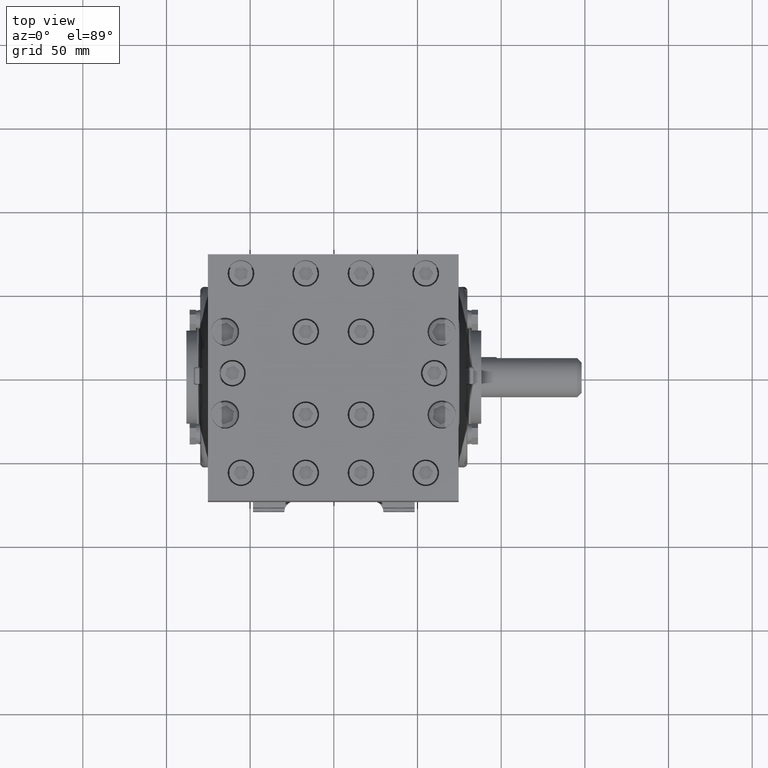
[diagram: clean part render]
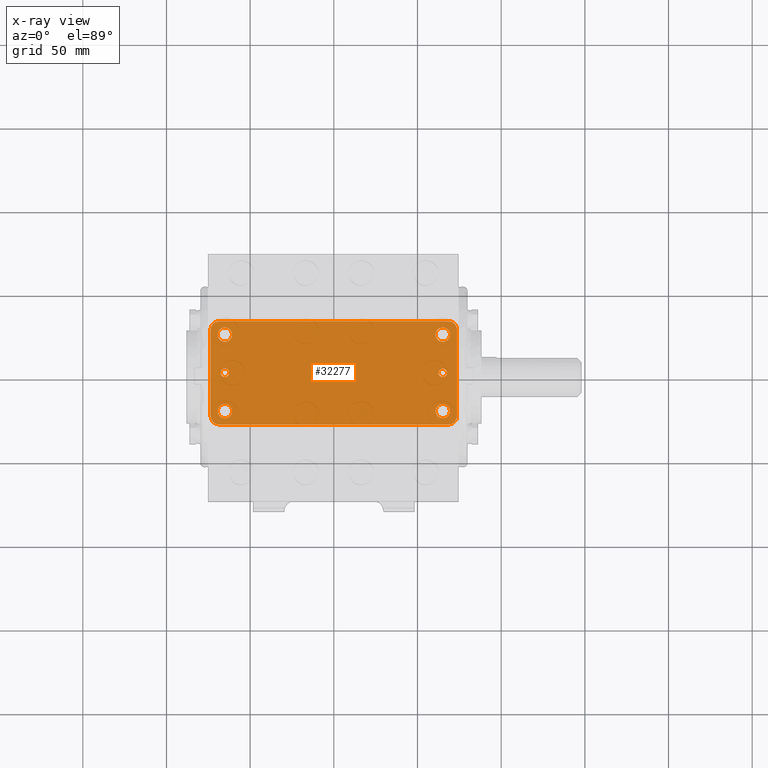
[diagram: x-ray — body ghosted, one internal face saturated and labeled with its STEP entity id]
A machine part, top view, then the same camera in x-ray: the body is ghosted and one INTERNAL B-rep face — a face not visible from any outside direction — is saturated and labeled: STEP entity #32277.
In plain terms, the highlighted planar face has unit normal (0, -0, -1).
Its self-contained STEP definition (entity closure, byte-faithful):
#13656 = CARTESIAN_POINT ( 'NONE',  ( -2.562500000000000000, 0.7326771653543310300, 5.655000000000001100 ) ) ;
#13681 = DIRECTION ( 'NONE',  ( 0.0000000000000000000, -1.000000000000000000, 0.0000000000000000000 ) ) ;
#13682 = DIRECTION ( 'NONE',  ( -0.0000000000000000000, 4.370956789862821100E-016, 1.000000000000000000 ) ) ;
#13684 = AXIS2_PLACEMENT_3D ( 'NONE', #13695, #13682, #13681 ) ;
#13685 = CIRCLE ( 'NONE', #13684, 0.1673228346456689100 ) ;
#13695 = CARTESIAN_POINT ( 'NONE',  ( -2.562500000000000000, 0.8999999999999999100, 5.655000000000001100 ) ) ;
#13787 = CARTESIAN_POINT ( 'NONE',  ( -2.562500000000000000, 1.067322834645668900, 5.655000000000001100 ) ) ;
#13959 = CARTESIAN_POINT ( 'NONE',  ( -2.562500000000000000, -0.7326771653543310300, 5.655000000000001100 ) ) ;
#14186 = DIRECTION ( 'NONE',  ( 0.0000000000000000000, -1.000000000000000000, 0.0000000000000000000 ) ) ;
#14188 = DIRECTION ( 'NONE',  ( -0.0000000000000000000, 4.370956789862821100E-016, 1.000000000000000000 ) ) ;
#14189 = CARTESIAN_POINT ( 'NONE',  ( 2.562500000000000000, 0.8999999999999999100, 5.655000000000001100 ) ) ;
#14190 = AXIS2_PLACEMENT_3D ( 'NONE', #14189, #14188, #14186 ) ;
#14192 = CIRCLE ( 'NONE', #14190, 0.1673228346456689100 ) ;
#14250 = CARTESIAN_POINT ( 'NONE',  ( 2.562500000000000000, 1.067322834645668900, 5.655000000000001100 ) ) ;
#14282 = CARTESIAN_POINT ( 'NONE',  ( 2.562500000000000000, 0.7326771653543310300, 5.655000000000001100 ) ) ;
#14348 = CARTESIAN_POINT ( 'NONE',  ( -2.562500000000000000, -1.067322834645668900, 5.655000000000001100 ) ) ;
#14349 = DIRECTION ( 'NONE',  ( 0.0000000000000000000, -1.000000000000000000, 0.0000000000000000000 ) ) ;
#14351 = DIRECTION ( 'NONE',  ( -0.0000000000000000000, 4.370956789862821100E-016, 1.000000000000000000 ) ) ;
#14353 = CARTESIAN_POINT ( 'NONE',  ( -2.562500000000000000, -0.8999999999999999100, 5.655000000000001100 ) ) ;
#14354 = AXIS2_PLACEMENT_3D ( 'NONE', #14353, #14351, #14349 ) ;
#14357 = CIRCLE ( 'NONE', #14354, 0.1673228346456689100 ) ;
#14455 = CARTESIAN_POINT ( 'NONE',  ( 2.562500000000000000, -0.7326771653543310300, 5.655000000000001100 ) ) ;
#14607 = CARTESIAN_POINT ( 'NONE',  ( 2.562500000000000000, -1.067322834645668900, 5.655000000000001100 ) ) ;
#14610 = DIRECTION ( 'NONE',  ( 0.0000000000000000000, -1.000000000000000000, 0.0000000000000000000 ) ) ;
#14611 = DIRECTION ( 'NONE',  ( -0.0000000000000000000, 4.370956789862821100E-016, 1.000000000000000000 ) ) ;
#14612 = CARTESIAN_POINT ( 'NONE',  ( 2.562500000000000000, -0.8999999999999999100, 5.655000000000001100 ) ) ;
#14613 = AXIS2_PLACEMENT_3D ( 'NONE', #14612, #14611, #14610 ) ;
#14614 = CIRCLE ( 'NONE', #14613, 0.1673228346456689100 ) ;
#16316 = CARTESIAN_POINT ( 'NONE',  ( -2.662499999999999600, 7.867722221753134100E-017, 5.655000000000001100 ) ) ;
#16319 = DIRECTION ( 'NONE',  ( 0.0000000000000000000, 1.000000000000000000, 0.0000000000000000000 ) ) ;
#16321 = DIRECTION ( 'NONE',  ( -0.0000000000000000000, 4.370956789862821100E-016, 1.000000000000000000 ) ) ;
#16322 = CARTESIAN_POINT ( 'NONE',  ( -2.562500000000000000, 7.867722221753134100E-017, 5.655000000000001100 ) ) ;
#16324 = AXIS2_PLACEMENT_3D ( 'NONE', #16322, #16321, #16319 ) ;
#16326 = CIRCLE ( 'NONE', #16324, 0.09999999999999983900 ) ;
#16673 = CARTESIAN_POINT ( 'NONE',  ( 2.462499999999999900, 7.867722221753134100E-017, 5.655000000000001100 ) ) ;
#16674 = DIRECTION ( 'NONE',  ( 0.0000000000000000000, 1.000000000000000000, 0.0000000000000000000 ) ) ;
#16675 = DIRECTION ( 'NONE',  ( -0.0000000000000000000, 4.370956789862821100E-016, 1.000000000000000000 ) ) ;
#16677 = CARTESIAN_POINT ( 'NONE',  ( 2.562500000000000000, 7.867722221753134100E-017, 5.655000000000001100 ) ) ;
#16678 = AXIS2_PLACEMENT_3D ( 'NONE', #16677, #16675, #16674 ) ;
#16679 = CIRCLE ( 'NONE', #16678, 0.09999999999999983900 ) ;
#16872 = CARTESIAN_POINT ( 'NONE',  ( -2.462499999999999900, 9.092328575575506900E-017, 5.655000000000001100 ) ) ;
#16883 = CARTESIAN_POINT ( 'NONE',  ( 2.662499999999999600, 9.092328575575506900E-017, 5.655000000000001100 ) ) ;
#21062 = FACE_BOUND ( 'NONE', #32320, .T. ) ;
#21064 = FACE_BOUND ( 'NONE', #32316, .T. ) ;
#21066 = FACE_BOUND ( 'NONE', #32312, .T. ) ;
#21068 = FACE_BOUND ( 'NONE', #32391, .T. ) ;
#21070 = FACE_BOUND ( 'NONE', #32330, .T. ) ;
#21072 = FACE_BOUND ( 'NONE', #32326, .T. ) ;
#21073 = FACE_OUTER_BOUND ( 'NONE', #32278, .T. ) ;
#21098 = CARTESIAN_POINT ( 'NONE',  ( 2.900000000000000400, 1.003832905699142000, 5.654999999999999400 ) ) ;
#21100 = CARTESIAN_POINT ( 'NONE',  ( 2.900000000000000400, -1.003800552367347900, 5.655000000000001100 ) ) ;
#21102 = DIRECTION ( 'NONE',  ( -0.0000000000000000000, 1.000000000000000000, -4.370956789862821100E-016 ) ) ;
#21103 = VECTOR ( 'NONE', #21102, 39.37007874015748100 ) ;
#21106 = CARTESIAN_POINT ( 'NONE',  ( 2.900000000000000400, 0.9883960552825806800, 5.654999999999999400 ) ) ;
#21107 = LINE ( 'NONE', #21106, #21103 ) ;
#21110 = DIRECTION ( 'NONE',  ( 0.0000000000000000000, 1.000000000000000000, -4.370956789862821100E-016 ) ) ;
#21112 = DIRECTION ( 'NONE',  ( 0.0000000000000000000, -4.370956789862821100E-016, -1.000000000000000000 ) ) ;
#21114 = CARTESIAN_POINT ( 'NONE',  ( 2.949999999999999700, 1.250000000000000000, 5.654999999999999400 ) ) ;
#21115 = AXIS2_PLACEMENT_3D ( 'NONE', #21114, #21112, #21110 ) ;
#21119 = PLANE ( 'NONE',  #21115 ) ;
#21325 = DIRECTION ( 'NONE',  ( -0.0000000000000000000, 4.370956789862821100E-016, 1.000000000000000000 ) ) ;
#21327 = CARTESIAN_POINT ( 'NONE',  ( -2.562500000000000000, 0.8999999999999999100, 5.655000000000001100 ) ) ;
#21329 = AXIS2_PLACEMENT_3D ( 'NONE', #21327, #21325, #21438 ) ;
#21330 = CIRCLE ( 'NONE', #21329, 0.1673228346456689100 ) ;
#21333 = DIRECTION ( 'NONE',  ( 0.0000000000000000000, -1.000000000000000000, 0.0000000000000000000 ) ) ;
#21334 = DIRECTION ( 'NONE',  ( -0.0000000000000000000, 4.370956789862821100E-016, 1.000000000000000000 ) ) ;
#21335 = CARTESIAN_POINT ( 'NONE',  ( -2.562500000000000000, -0.8999999999999999100, 5.655000000000001100 ) ) ;
#21336 = AXIS2_PLACEMENT_3D ( 'NONE', #21335, #21334, #21333 ) ;
#21337 = CIRCLE ( 'NONE', #21336, 0.1673228346456689100 ) ;
#21340 = DIRECTION ( 'NONE',  ( 0.0000000000000000000, -1.000000000000000000, 0.0000000000000000000 ) ) ;
#21341 = DIRECTION ( 'NONE',  ( -0.0000000000000000000, 4.370956789862821100E-016, 1.000000000000000000 ) ) ;
#21342 = AXIS2_PLACEMENT_3D ( 'NONE', #21357, #21341, #21340 ) ;
#21343 = CIRCLE ( 'NONE', #21342, 0.1673228346456689100 ) ;
#21357 = CARTESIAN_POINT ( 'NONE',  ( 2.562500000000000000, -0.8999999999999999100, 5.655000000000001100 ) ) ;
#21379 = DIRECTION ( 'NONE',  ( 0.0000000000000000000, 1.000000000000000000, 0.0000000000000000000 ) ) ;
#21380 = DIRECTION ( 'NONE',  ( -0.0000000000000000000, 4.370956789862821100E-016, 1.000000000000000000 ) ) ;
#21381 = CARTESIAN_POINT ( 'NONE',  ( -2.562500000000000000, 7.867722221753134100E-017, 5.655000000000001100 ) ) ;
#21382 = AXIS2_PLACEMENT_3D ( 'NONE', #21381, #21380, #21379 ) ;
#21383 = CIRCLE ( 'NONE', #21382, 0.09999999999999983900 ) ;
#21385 = CARTESIAN_POINT ( 'NONE',  ( 2.900000000000000400, -1.003800552367347900, 5.655000000000001100 ) ) ;
#21386 = CARTESIAN_POINT ( 'NONE',  ( 2.900000000000000800, -1.017311031415467600, 5.655000000000002000 ) ) ;
#21387 = CARTESIAN_POINT ( 'NONE',  ( 2.898761993453316000, -1.030612369051676600, 5.655000000000002000 ) ) ;
#21388 = CARTESIAN_POINT ( 'NONE',  ( 2.893899042084374000, -1.056811809266545300, 5.655000000000001100 ) ) ;
#21389 = CARTESIAN_POINT ( 'NONE',  ( 2.890231123363884900, -1.069816012598058900, 5.655000000000002000 ) ) ;
#21391 = CARTESIAN_POINT ( 'NONE',  ( 2.880529023557723900, -1.094887812593892800, 5.655000000000001100 ) ) ;
#21392 = CARTESIAN_POINT ( 'NONE',  ( 2.874575549651520400, -1.106810775968414700, 5.655000000000002000 ) ) ;
#21394 = CARTESIAN_POINT ( 'NONE',  ( 2.860472405037183000, -1.129435639452988500, 5.655000000000001100 ) ) ;
#21395 = CARTESIAN_POINT ( 'NONE',  ( 2.852208575408749600, -1.140246269705353900, 5.655000000000002000 ) ) ;
#21396 = CARTESIAN_POINT ( 'NONE',  ( 2.833937812452910400, -1.159813533848143700, 5.655000000000001100 ) ) ;
#21397 = CARTESIAN_POINT ( 'NONE',  ( 2.823948144963689200, -1.168610894896387400, 5.655000000000002000 ) ) ;
#21399 = CARTESIAN_POINT ( 'NONE',  ( 2.802222454375523900, -1.184189453891519400, 5.655000000000001100 ) ) ;
#21400 = CARTESIAN_POINT ( 'NONE',  ( 2.790394891165747000, -1.190978226164739900, 5.655000000000002000 ) ) ;
#21401 = CARTESIAN_POINT ( 'NONE',  ( 2.766012842574188100, -1.201812361031911800, 5.655000000000001100 ) ) ;
#21403 = CARTESIAN_POINT ( 'NONE',  ( 2.753343459766775000, -1.205961762424050200, 5.654999999999999400 ) ) ;
#21404 = CARTESIAN_POINT ( 'NONE',  ( 2.727004580293438600, -1.211610230061805900, 5.655000000000001100 ) ) ;
#21405 = CARTESIAN_POINT ( 'NONE',  ( 2.713529048622997900, -1.213049342889984000, 5.655000000000001100 ) ) ;
#21407 = DIRECTION ( 'NONE',  ( -0.0000000000000000000, 4.370956789862821100E-016, 1.000000000000000000 ) ) ;
#21408 = CARTESIAN_POINT ( 'NONE',  ( 2.562500000000000000, 0.8999999999999999100, 5.655000000000001100 ) ) ;
#21409 = AXIS2_PLACEMENT_3D ( 'NONE', #21408, #21407, #21501 ) ;
#21411 = CIRCLE ( 'NONE', #21409, 0.1673228346456689100 ) ;
#21416 = CARTESIAN_POINT ( 'NONE',  ( 2.700000000000000200, -1.213049342889988700, 5.655000000000001100 ) ) ;
#21424 = B_SPLINE_CURVE_WITH_KNOTS ( 'NONE', 3,
 ( #21416, #21405, #21404, #21403, #21401, #21400, #21399, #21397, #21396, #21395, #21394, #21392, #21391, #21389, #21388, #21387, #21386, #21385 ),
 .UNSPECIFIED., .F., .F.,
 ( 4, 2, 2, 2, 2, 2, 2, 2, 4 ),
 ( 1.387778780781445500E-017, 0.001026536263863408800, 0.002053072527726803600, 0.003079608791590198500, 0.004106145055453593400, 0.005132681319316987800, 0.006159217583180383100, 0.007185753847043778500, 0.008212290110907172900 ),
 .UNSPECIFIED. ) ;
#21430 = CARTESIAN_POINT ( 'NONE',  ( 2.700000000000000200, -1.213049342889988700, 5.655000000000001100 ) ) ;
#21431 = DIRECTION ( 'NONE',  ( 1.000000000000000000, -0.0000000000000000000, -0.0000000000000000000 ) ) ;
#21432 = VECTOR ( 'NONE', #21431, 39.37007874015748100 ) ;
#21433 = CARTESIAN_POINT ( 'NONE',  ( 2.949999999999999700, -1.213049342889988700, 5.655000000000001100 ) ) ;
#21435 = LINE ( 'NONE', #21433, #21432 ) ;
#21438 = DIRECTION ( 'NONE',  ( 0.0000000000000000000, -1.000000000000000000, 0.0000000000000000000 ) ) ;
#21440 = CARTESIAN_POINT ( 'NONE',  ( -2.700000000000000200, 1.213001356375073900, 5.654999999999999400 ) ) ;
#21442 = CARTESIAN_POINT ( 'NONE',  ( -2.900000000000000400, 1.003832905699142000, 5.654999999999999400 ) ) ;
#21443 = B_SPLINE_CURVE_WITH_KNOTS ( 'NONE', 3,
 ( #21440, #21555, #21554, #21553, #21551, #21550, #21549, #21548, #21546, #21544, #21541, #21539, #21537, #21536, #21533, #21530, #21528, #21525 ),
 .UNSPECIFIED., .F., .F.,
 ( 4, 2, 2, 2, 2, 2, 2, 2, 4 ),
 ( 0.0000000000000000000, 0.001026303920712618200, 0.002052607841425236500, 0.003078911762137854700, 0.004105215682850472900, 0.005131519603563091200, 0.006157823524275709400, 0.007184127444988327700, 0.008210431365700945900 ),
 .UNSPECIFIED. ) ;
#21444 = LINE ( 'NONE', #21560, #21559 ) ;
#21446 = CARTESIAN_POINT ( 'NONE',  ( 2.700000000000000200, 1.213001356375073900, 5.654999999999999400 ) ) ;
#21448 = CARTESIAN_POINT ( 'NONE',  ( 2.713514278077720400, 1.213001356375069500, 5.655000000000001100 ) ) ;
#21449 = CARTESIAN_POINT ( 'NONE',  ( 2.726784882773227300, 1.211584104952989200, 5.655000000000001100 ) ) ;
#21451 = CARTESIAN_POINT ( 'NONE',  ( 2.752861072589715800, 1.206044958510548800, 5.654999999999999400 ) ) ;
#21452 = CARTESIAN_POINT ( 'NONE',  ( 2.765806462633638500, 1.201846635930978100, 5.654999999999999400 ) ) ;
#21453 = CARTESIAN_POINT ( 'NONE',  ( 2.790270358036826900, 1.191007375618610800, 5.655000000000001100 ) ) ;
#21455 = CARTESIAN_POINT ( 'NONE',  ( 2.801839983752715500, 1.184392718587890400, 5.655000000000002000 ) ) ;
#21456 = CARTESIAN_POINT ( 'NONE',  ( 2.818215703824592300, 1.172704832259884100, 5.654999999999999400 ) ) ;
#21457 = CARTESIAN_POINT ( 'NONE',  ( 2.823529505836269900, 1.168491578143979100, 5.655000000000002000 ) ) ;
#21459 = CARTESIAN_POINT ( 'NONE',  ( 2.833612423260230400, 1.159643343386801400, 5.654999999999999400 ) ) ;
#21461 = CARTESIAN_POINT ( 'NONE',  ( 2.838406136472820600, 1.154994164532810800, 5.654999999999998500 ) ) ;
#21463 = CARTESIAN_POINT ( 'NONE',  ( 2.852067451495020800, 1.140392711793110700, 5.654999999999998500 ) ) ;
#21465 = CARTESIAN_POINT ( 'NONE',  ( 2.860257851952703800, 1.129733942890211300, 5.655000000000002000 ) ) ;
#21468 = CARTESIAN_POINT ( 'NONE',  ( 2.874533642762002300, 1.106899476621875800, 5.654999999999998500 ) ) ;
#21471 = CARTESIAN_POINT ( 'NONE',  ( 2.880486766948974400, 1.094961604811011100, 5.655000000000002000 ) ) ;
#21473 = CARTESIAN_POINT ( 'NONE',  ( 2.890138110068176200, 1.070094960270697500, 5.655000000000001100 ) ) ;
#21475 = CARTESIAN_POINT ( 'NONE',  ( 2.893849683606613400, 1.057044703676132600, 5.654999999999999400 ) ) ;
#21477 = CARTESIAN_POINT ( 'NONE',  ( 2.898763161759367000, 1.030672213955938100, 5.654999999999999400 ) ) ;
#21482 = CARTESIAN_POINT ( 'NONE',  ( -2.700000000000000200, 1.213001356375073900, 5.654999999999999400 ) ) ;
#21484 = DIRECTION ( 'NONE',  ( -1.000000000000000000, 0.0000000000000000000, 0.0000000000000000000 ) ) ;
#21485 = VECTOR ( 'NONE', #21484, 39.37007874015748100 ) ;
#21486 = CARTESIAN_POINT ( 'NONE',  ( 2.949999999999999700, 1.213001356375073900, 5.654999999999999400 ) ) ;
#21491 = CARTESIAN_POINT ( 'NONE',  ( 2.900000000000001200, 1.017331079757599400, 5.655000000000002000 ) ) ;
#21492 = CARTESIAN_POINT ( 'NONE',  ( 2.900000000000000400, 1.003832905699142000, 5.654999999999999400 ) ) ;
#21495 = CARTESIAN_POINT ( 'NONE',  ( 2.700000000000000200, 1.213001356375073900, 5.654999999999999400 ) ) ;
#21498 = B_SPLINE_CURVE_WITH_KNOTS ( 'NONE', 3,
 ( #21492, #21491, #21477, #21475, #21473, #21471, #21468, #21465, #21463, #21461, #21459, #21457, #21456, #21455, #21453, #21452, #21451, #21449, #21448, #21446 ),
 .UNSPECIFIED., .F., .F.,
 ( 4, 2, 2, 2, 2, 2, 2, 2, 2, 4 ),
 ( 0.0000000000000000000, 0.001020369023931797200, 0.002040738047863594400, 0.003061107071795392100, 0.004081476095727188900, 0.004591660607693092000, 0.005101845119658993500, 0.006122214143590770300, 0.007142583167522548900, 0.008162952191454325700 ),
 .UNSPECIFIED. ) ;
#21500 = LINE ( 'NONE', #21486, #21485 ) ;
#21501 = DIRECTION ( 'NONE',  ( 0.0000000000000000000, -1.000000000000000000, 0.0000000000000000000 ) ) ;
#21503 = CARTESIAN_POINT ( 'NONE',  ( -2.880493281076113900, -1.094950230231924700, 5.655000000000001100 ) ) ;
#21504 = CARTESIAN_POINT ( 'NONE',  ( -2.890141872683172700, -1.070076211728049100, 5.655000000000002000 ) ) ;
#21505 = CARTESIAN_POINT ( 'NONE',  ( -2.893852201172074400, -1.057022283715161900, 5.655000000000002900 ) ) ;
#21506 = CARTESIAN_POINT ( 'NONE',  ( -2.898763646892322100, -1.030644960642493200, 5.655000000000001100 ) ) ;
#21515 = CARTESIAN_POINT ( 'NONE',  ( -2.900000000000001200, -1.017301323537443500, 5.655000000000002900 ) ) ;
#21517 = CARTESIAN_POINT ( 'NONE',  ( -2.900000000000000400, -1.003800552367347900, 5.655000000000001100 ) ) ;
#21519 = CARTESIAN_POINT ( 'NONE',  ( -2.700000000000000200, -1.213049342889995600, 5.655000000000001100 ) ) ;
#21520 = B_SPLINE_CURVE_WITH_KNOTS ( 'NONE', 3,
 ( #21517, #21515, #21506, #21505, #21504, #21503, #21621, #21620, #21619, #21618, #21616, #21615, #21614, #21612, #21611, #21610, #21609, #21608, #21606, #21604 ),
 .UNSPECIFIED., .F., .F.,
 ( 4, 2, 2, 2, 2, 2, 2, 2, 2, 4 ),
 ( 0.0000000000000000000, 0.001020549269870936900, 0.002041098539741873900, 0.003061647809612810600, 0.004082197079483747800, 0.004592471714419201600, 0.005102746349354655500, 0.006123295619225563100, 0.007143844889096471700, 0.008164394158967379400 ),
 .UNSPECIFIED. ) ;
#21525 = CARTESIAN_POINT ( 'NONE',  ( -2.900000000000000400, 1.003832905699142000, 5.654999999999999400 ) ) ;
#21528 = CARTESIAN_POINT ( 'NONE',  ( -2.900000000000000800, 1.017340709354645800, 5.654999999999999400 ) ) ;
#21530 = CARTESIAN_POINT ( 'NONE',  ( -2.898761521950176800, 1.030639279689874500, 5.654999999999999400 ) ) ;
#21533 = CARTESIAN_POINT ( 'NONE',  ( -2.893896824951159200, 1.056833026084261600, 5.654999999999999400 ) ) ;
#21536 = CARTESIAN_POINT ( 'NONE',  ( -2.890227445682377100, 1.069834642694564900, 5.654999999999999400 ) ) ;
#21537 = CARTESIAN_POINT ( 'NONE',  ( -2.880522638530852200, 1.094898940551197700, 5.654999999999999400 ) ) ;
#21539 = CARTESIAN_POINT ( 'NONE',  ( -2.874567641343106900, 1.106818087683188800, 5.654999999999999400 ) ) ;
#21541 = CARTESIAN_POINT ( 'NONE',  ( -2.860461201110855000, 1.129435238235567900, 5.654999999999999400 ) ) ;
#21544 = CARTESIAN_POINT ( 'NONE',  ( -2.852195595555436600, 1.140241735376766900, 5.654999999999999400 ) ) ;
#21546 = CARTESIAN_POINT ( 'NONE',  ( -2.833923540619538900, 1.159799103298258000, 5.654999999999999400 ) ) ;
#21548 = CARTESIAN_POINT ( 'NONE',  ( -2.823933334745370800, 1.168591907368692800, 5.654999999999999400 ) ) ;
#21549 = CARTESIAN_POINT ( 'NONE',  ( -2.802206745558601100, 1.184162103730332700, 5.654999999999999400 ) ) ;
#21550 = CARTESIAN_POINT ( 'NONE',  ( -2.790380284368459800, 1.190946138909855900, 5.654999999999999400 ) ) ;
#21551 = CARTESIAN_POINT ( 'NONE',  ( -2.766001445030925200, 1.201772620472498100, 5.654999999999999400 ) ) ;
#21553 = CARTESIAN_POINT ( 'NONE',  ( -2.753333639252509200, 1.205919169120201800, 5.654999999999998500 ) ) ;
#21554 = CARTESIAN_POINT ( 'NONE',  ( -2.726997734042402800, 1.211563644149276800, 5.655000000000001100 ) ) ;
#21555 = CARTESIAN_POINT ( 'NONE',  ( -2.713526199258947000, 1.213001356375074100, 5.655000000000001100 ) ) ;
#21557 = CARTESIAN_POINT ( 'NONE',  ( -2.900000000000000400, -1.003800552367347900, 5.655000000000001100 ) ) ;
#21558 = DIRECTION ( 'NONE',  ( 0.0000000000000000000, -1.000000000000000000, 4.370956789862821100E-016 ) ) ;
#21559 = VECTOR ( 'NONE', #21558, 39.37007874015748100 ) ;
#21560 = CARTESIAN_POINT ( 'NONE',  ( -2.900000000000000400, 1.250000000000000000, 5.654999999999999400 ) ) ;
#21604 = CARTESIAN_POINT ( 'NONE',  ( -2.700000000000000200, -1.213049342889995600, 5.655000000000001100 ) ) ;
#21606 = CARTESIAN_POINT ( 'NONE',  ( -2.713517009148428600, -1.213049342889989300, 5.655000000000002000 ) ) ;
#21608 = CARTESIAN_POINT ( 'NONE',  ( -2.726790134819740500, -1.211630989446476700, 5.655000000000002900 ) ) ;
#21609 = CARTESIAN_POINT ( 'NONE',  ( -2.752870986850295900, -1.206087659196994900, 5.655000000000002000 ) ) ;
#21610 = CARTESIAN_POINT ( 'NONE',  ( -2.765818488444296900, -1.201886150829788400, 5.655000000000002000 ) ) ;
#21611 = CARTESIAN_POINT ( 'NONE',  ( -2.790284595629049800, -1.191039651496640200, 5.655000000000002000 ) ) ;
#21612 = CARTESIAN_POINT ( 'NONE',  ( -2.801854967600970100, -1.184420736544800500, 5.655000000000002900 ) ) ;
#21614 = CARTESIAN_POINT ( 'NONE',  ( -2.818231325734957600, -1.172725610368893700, 5.655000000000002900 ) ) ;
#21615 = CARTESIAN_POINT ( 'NONE',  ( -2.823544970917830200, -1.168509994027752100, 5.655000000000002000 ) ) ;
#21616 = CARTESIAN_POINT ( 'NONE',  ( -2.833627004609495800, -1.159657403087230400, 5.655000000000002900 ) ) ;
#21618 = CARTESIAN_POINT ( 'NONE',  ( -2.838420252799461500, -1.155005990602617100, 5.655000000000002000 ) ) ;
#21619 = CARTESIAN_POINT ( 'NONE',  ( -2.852080108530517400, -1.140397678380934000, 5.655000000000001100 ) ) ;
#21620 = CARTESIAN_POINT ( 'NONE',  ( -2.860270077446537900, -1.129733026854347700, 5.655000000000002900 ) ) ;
#21621 = CARTESIAN_POINT ( 'NONE',  ( -2.874541807445619000, -1.106891655247018500, 5.655000000000002000 ) ) ;
#21769 = DIRECTION ( 'NONE',  ( 0.0000000000000000000, 1.000000000000000000, 0.0000000000000000000 ) ) ;
#21770 = DIRECTION ( 'NONE',  ( -0.0000000000000000000, 4.370956789862821100E-016, 1.000000000000000000 ) ) ;
#21772 = CARTESIAN_POINT ( 'NONE',  ( 2.562500000000000000, 7.867722221753134100E-017, 5.655000000000001100 ) ) ;
#21773 = AXIS2_PLACEMENT_3D ( 'NONE', #21772, #21770, #21769 ) ;
#21774 = CIRCLE ( 'NONE', #21773, 0.09999999999999983900 ) ;
#24824 = EDGE_CURVE ( 'NONE', #24848, #24831, #13685, .T. ) ;
#24831 = VERTEX_POINT ( 'NONE', #13656 ) ;
#24848 = VERTEX_POINT ( 'NONE', #13787 ) ;
#30888 = VERTEX_POINT ( 'NONE', #13959 ) ;
#30934 = EDGE_CURVE ( 'NONE', #30942, #30953, #14192, .T. ) ;
#30942 = VERTEX_POINT ( 'NONE', #14250 ) ;
#30953 = VERTEX_POINT ( 'NONE', #14282 ) ;
#30965 = EDGE_CURVE ( 'NONE', #30888, #30966, #14357, .T. ) ;
#30966 = VERTEX_POINT ( 'NONE', #14348 ) ;
#30973 = VERTEX_POINT ( 'NONE', #14455 ) ;
#30993 = EDGE_CURVE ( 'NONE', #30973, #30996, #14614, .T. ) ;
#30996 = VERTEX_POINT ( 'NONE', #14607 ) ;
#31281 = EDGE_CURVE ( 'NONE', #31362, #31282, #16326, .T. ) ;
#31282 = VERTEX_POINT ( 'NONE', #16316 ) ;
#31336 = EDGE_CURVE ( 'NONE', #31359, #31337, #16679, .T. ) ;
#31337 = VERTEX_POINT ( 'NONE', #16673 ) ;
#31359 = VERTEX_POINT ( 'NONE', #16883 ) ;
#31362 = VERTEX_POINT ( 'NONE', #16872 ) ;
#32277 = ADVANCED_FACE ( 'NONE', ( #21073, #21072, #21070, #21068, #21066, #21064, #21062 ), #21119, .F. ) ;
#32278 = EDGE_LOOP ( 'NONE', ( #32279, #32334, #32337, #32340, #32343, #32346, #32321, #32324 ) ) ;
#32279 = ORIENTED_EDGE ( 'NONE', *, *, #32280, .T. ) ;
#32280 = EDGE_CURVE ( 'NONE', #32281, #32282, #21107, .T. ) ;
#32281 = VERTEX_POINT ( 'NONE', #21100 ) ;
#32282 = VERTEX_POINT ( 'NONE', #21098 ) ;
#32310 = EDGE_CURVE ( 'NONE', #30996, #30973, #21343, .T. ) ;
#32311 = ORIENTED_EDGE ( 'NONE', *, *, #30993, .F. ) ;
#32312 = EDGE_LOOP ( 'NONE', ( #32313, #32315 ) ) ;
#32313 = ORIENTED_EDGE ( 'NONE', *, *, #32314, .F. ) ;
#32314 = EDGE_CURVE ( 'NONE', #30966, #30888, #21337, .T. ) ;
#32315 = ORIENTED_EDGE ( 'NONE', *, *, #30965, .F. ) ;
#32316 = EDGE_LOOP ( 'NONE', ( #32317, #32319 ) ) ;
#32317 = ORIENTED_EDGE ( 'NONE', *, *, #32318, .F. ) ;
#32318 = EDGE_CURVE ( 'NONE', #24831, #24848, #21330, .T. ) ;
#32319 = ORIENTED_EDGE ( 'NONE', *, *, #24824, .F. ) ;
#32320 = EDGE_LOOP ( 'NONE', ( #32377, #32379 ) ) ;
#32321 = ORIENTED_EDGE ( 'NONE', *, *, #32322, .T. ) ;
#32322 = EDGE_CURVE ( 'NONE', #32348, #32323, #21435, .T. ) ;
#32323 = VERTEX_POINT ( 'NONE', #21430 ) ;
#32324 = ORIENTED_EDGE ( 'NONE', *, *, #32325, .T. ) ;
#32325 = EDGE_CURVE ( 'NONE', #32323, #32281, #21424, .T. ) ;
#32326 = EDGE_LOOP ( 'NONE', ( #32327, #32329 ) ) ;
#32327 = ORIENTED_EDGE ( 'NONE', *, *, #32328, .F. ) ;
#32328 = EDGE_CURVE ( 'NONE', #31282, #31362, #21383, .T. ) ;
#32329 = ORIENTED_EDGE ( 'NONE', *, *, #31281, .F. ) ;
#32330 = EDGE_LOOP ( 'NONE', ( #32331, #32333 ) ) ;
#32331 = ORIENTED_EDGE ( 'NONE', *, *, #32332, .F. ) ;
#32332 = EDGE_CURVE ( 'NONE', #30953, #30942, #21411, .T. ) ;
#32333 = ORIENTED_EDGE ( 'NONE', *, *, #30934, .F. ) ;
#32334 = ORIENTED_EDGE ( 'NONE', *, *, #32335, .T. ) ;
#32335 = EDGE_CURVE ( 'NONE', #32282, #32336, #21498, .T. ) ;
#32336 = VERTEX_POINT ( 'NONE', #21495 ) ;
#32337 = ORIENTED_EDGE ( 'NONE', *, *, #32338, .T. ) ;
#32338 = EDGE_CURVE ( 'NONE', #32336, #32339, #21500, .T. ) ;
#32339 = VERTEX_POINT ( 'NONE', #21482 ) ;
#32340 = ORIENTED_EDGE ( 'NONE', *, *, #32341, .T. ) ;
#32341 = EDGE_CURVE ( 'NONE', #32339, #32342, #21443, .T. ) ;
#32342 = VERTEX_POINT ( 'NONE', #21442 ) ;
#32343 = ORIENTED_EDGE ( 'NONE', *, *, #32344, .T. ) ;
#32344 = EDGE_CURVE ( 'NONE', #32342, #32345, #21444, .T. ) ;
#32345 = VERTEX_POINT ( 'NONE', #21557 ) ;
#32346 = ORIENTED_EDGE ( 'NONE', *, *, #32347, .T. ) ;
#32347 = EDGE_CURVE ( 'NONE', #32345, #32348, #21520, .T. ) ;
#32348 = VERTEX_POINT ( 'NONE', #21519 ) ;
#32377 = ORIENTED_EDGE ( 'NONE', *, *, #32378, .F. ) ;
#32378 = EDGE_CURVE ( 'NONE', #31337, #31359, #21774, .T. ) ;
#32379 = ORIENTED_EDGE ( 'NONE', *, *, #31336, .F. ) ;
#32391 = EDGE_LOOP ( 'NONE', ( #32392, #32311 ) ) ;
#32392 = ORIENTED_EDGE ( 'NONE', *, *, #32310, .F. ) ;